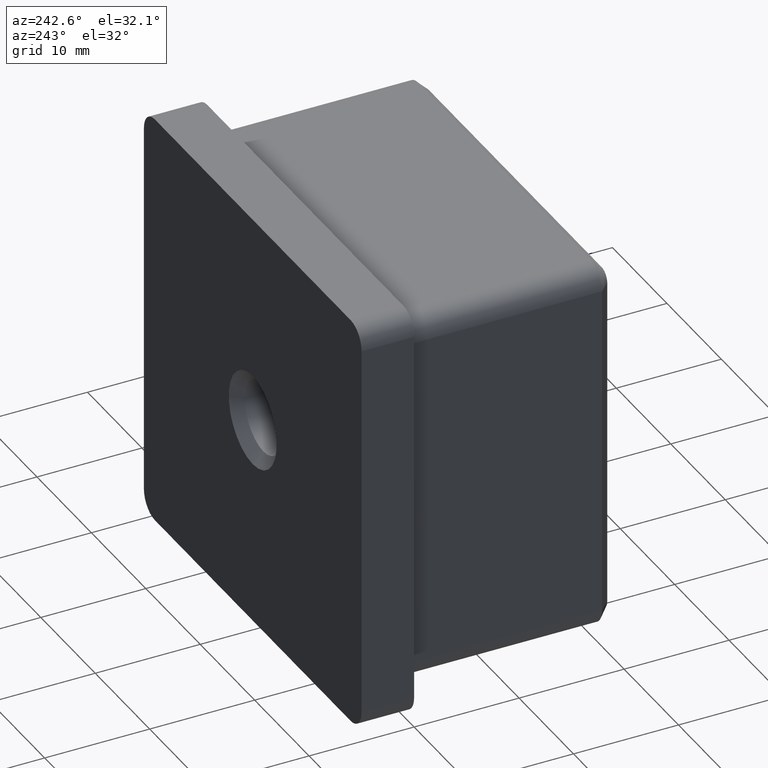
[diagram: clean part render]
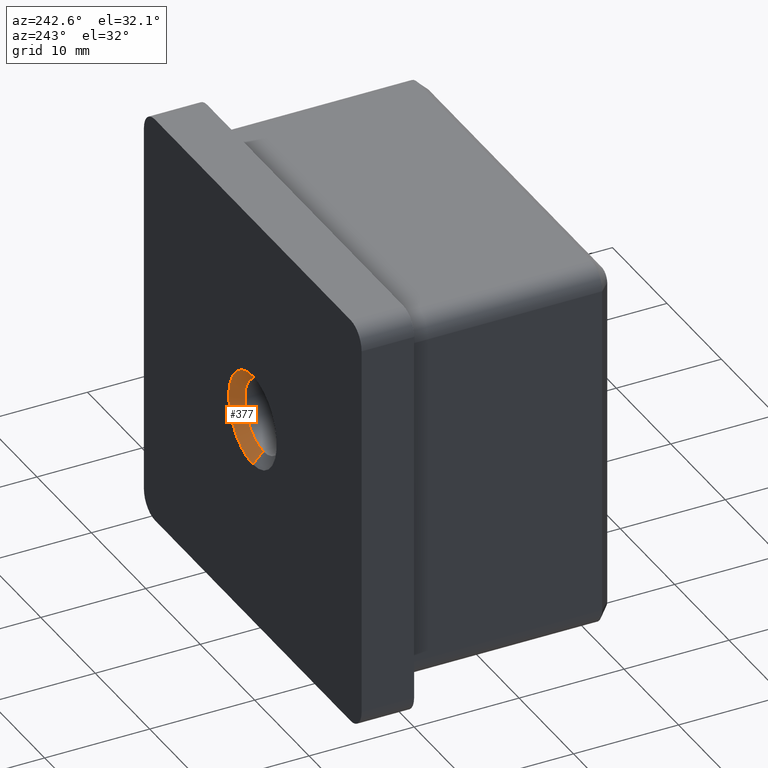
[diagram: same view with one face highlighted and labeled with its STEP entity id]
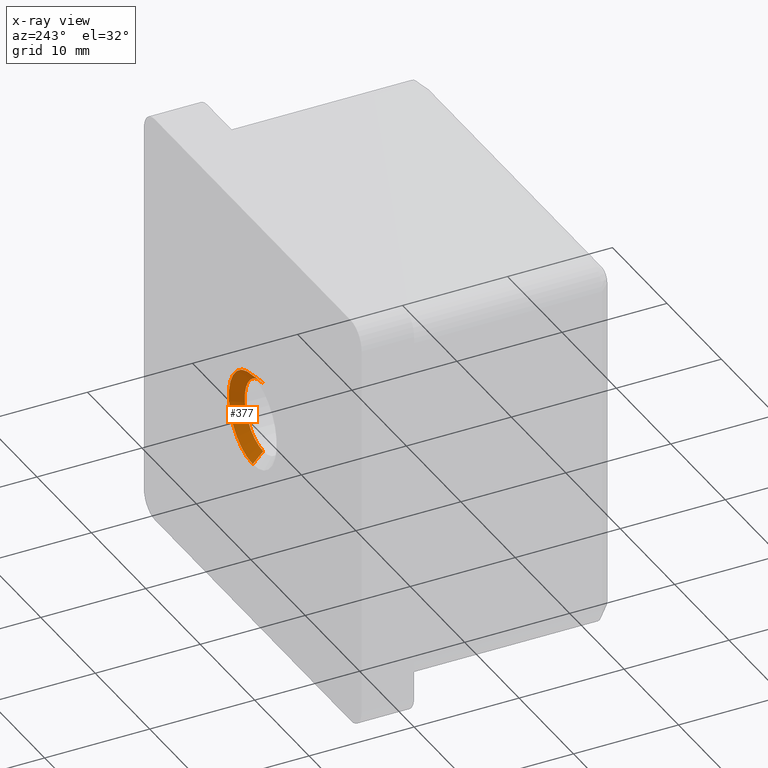
[diagram: x-ray of the same camera — body ghosted, the highlighted face saturated]
A machine part, auxiliary view. The second image highlights one B-rep face of the part: STEP entity #377.
The next image is the same camera in x-ray: the body ghosted, the highlighted face saturated — about 0% of this face is hidden behind the body in this view.
In plain terms, the highlighted conical surface has half-angle 45 deg.
Its self-contained STEP definition (entity closure, byte-faithful):
#219 = DIRECTION ( 'NONE',  ( -0.0000000000000000000, 1.000000000000000000, -0.0000000000000000000 ) ) ;
#377 = ADVANCED_FACE ( 'NONE', ( #6812 ), #7655, .F. ) ;
#844 = VERTEX_POINT ( 'NONE', #16537 ) ;
#869 = AXIS2_PLACEMENT_3D ( 'NONE', #8485, #9782, #8713 ) ;
#912 = EDGE_CURVE ( 'NONE', #13179, #844, #3746, .T. ) ;
#1402 = CARTESIAN_POINT ( 'NONE',  ( 2.449293598294707400E-016, 5.000000000000000000, 4.399999999999979000 ) ) ;
#2125 = EDGE_CURVE ( 'NONE', #12127, #13179, #14886, .T. ) ;
#2896 = VECTOR ( 'NONE', #8682, 1000.000000000000000 ) ;
#3746 = LINE ( 'NONE', #7364, #2896 ) ;
#3929 = VECTOR ( 'NONE', #8896, 1000.000000000000000 ) ;
#3980 = ORIENTED_EDGE ( 'NONE', *, *, #912, .F. ) ;
#5401 = DIRECTION ( 'NONE',  ( 0.0000000000000000000, 0.0000000000000000000, 1.000000000000000000 ) ) ;
#5443 = AXIS2_PLACEMENT_3D ( 'NONE', #8089, #219, #5401 ) ;
#5596 = ORIENTED_EDGE ( 'NONE', *, *, #2125, .F. ) ;
#6337 = CARTESIAN_POINT ( 'NONE',  ( 2.449293598294707400E-016, 4.000000000000016000, -3.399999999999996400 ) ) ;
#6812 = FACE_OUTER_BOUND ( 'NONE', #8443, .T. ) ;
#7163 = EDGE_CURVE ( 'NONE', #844, #10155, #14470, .T. ) ;
#7364 = CARTESIAN_POINT ( 'NONE',  ( 7.837739514543038200E-016, 5.000000000000000900, -4.399999999999979900 ) ) ;
#7404 = LINE ( 'NONE', #8786, #3929 ) ;
#7655 = CONICAL_SURFACE ( 'NONE', #5443, 4.399999999999979900, 0.7853981633974476100 ) ;
#8089 = CARTESIAN_POINT ( 'NONE',  ( 2.449293598294707400E-016, 5.000000000000000900, 0.0000000000000000000 ) ) ;
#8182 = EDGE_CURVE ( 'NONE', #12127, #10155, #7404, .T. ) ;
#8279 = CARTESIAN_POINT ( 'NONE',  ( 6.613092715395703500E-016, 4.000000000000016000, 3.399999999999996400 ) ) ;
#8443 = EDGE_LOOP ( 'NONE', ( #3980, #5596, #15428, #16452 ) ) ;
#8485 = CARTESIAN_POINT ( 'NONE',  ( 2.449293598294707400E-016, 5.000000000000000000, 0.0000000000000000000 ) ) ;
#8682 = DIRECTION ( 'NONE',  ( 8.659560562354926700E-017, 0.7071067811865480200, -0.7071067811865470200 ) ) ;
#8713 = DIRECTION ( 'NONE',  ( 0.0000000000000000000, 0.0000000000000000000, 1.000000000000000000 ) ) ;
#8786 = CARTESIAN_POINT ( 'NONE',  ( 2.449293598294707400E-016, 5.000000000000000900, 4.399999999999979900 ) ) ;
#8896 = DIRECTION ( 'NONE',  ( 0.0000000000000000000, 0.7071067811865480200, 0.7071067811865470200 ) ) ;
#9726 = AXIS2_PLACEMENT_3D ( 'NONE', #15070, #13760, #11170 ) ;
#9782 = DIRECTION ( 'NONE',  ( -0.0000000000000000000, -1.000000000000000000, -0.0000000000000000000 ) ) ;
#10155 = VERTEX_POINT ( 'NONE', #1402 ) ;
#11170 = DIRECTION ( 'NONE',  ( 0.0000000000000000000, 0.0000000000000000000, 1.000000000000000000 ) ) ;
#12127 = VERTEX_POINT ( 'NONE', #8279 ) ;
#13179 = VERTEX_POINT ( 'NONE', #6337 ) ;
#13760 = DIRECTION ( 'NONE',  ( -0.0000000000000000000, 1.000000000000000000, -0.0000000000000000000 ) ) ;
#14470 = CIRCLE ( 'NONE', #869, 4.399999999999979000 ) ;
#14886 = CIRCLE ( 'NONE', #9726, 3.399999999999996400 ) ;
#15070 = CARTESIAN_POINT ( 'NONE',  ( 2.449293598294707400E-016, 4.000000000000016000, 0.0000000000000000000 ) ) ;
#15428 = ORIENTED_EDGE ( 'NONE', *, *, #8182, .T. ) ;
#16452 = ORIENTED_EDGE ( 'NONE', *, *, #7163, .F. ) ;
#16537 = CARTESIAN_POINT ( 'NONE',  ( 7.837739514543038200E-016, 5.000000000000000000, -4.399999999999979000 ) ) ;